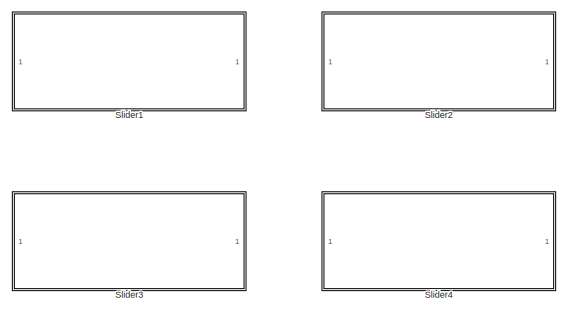
[diagram: root canvas - part 1/5, top right region]
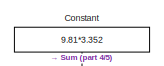
[diagram: root canvas - part 2/5, top right region]
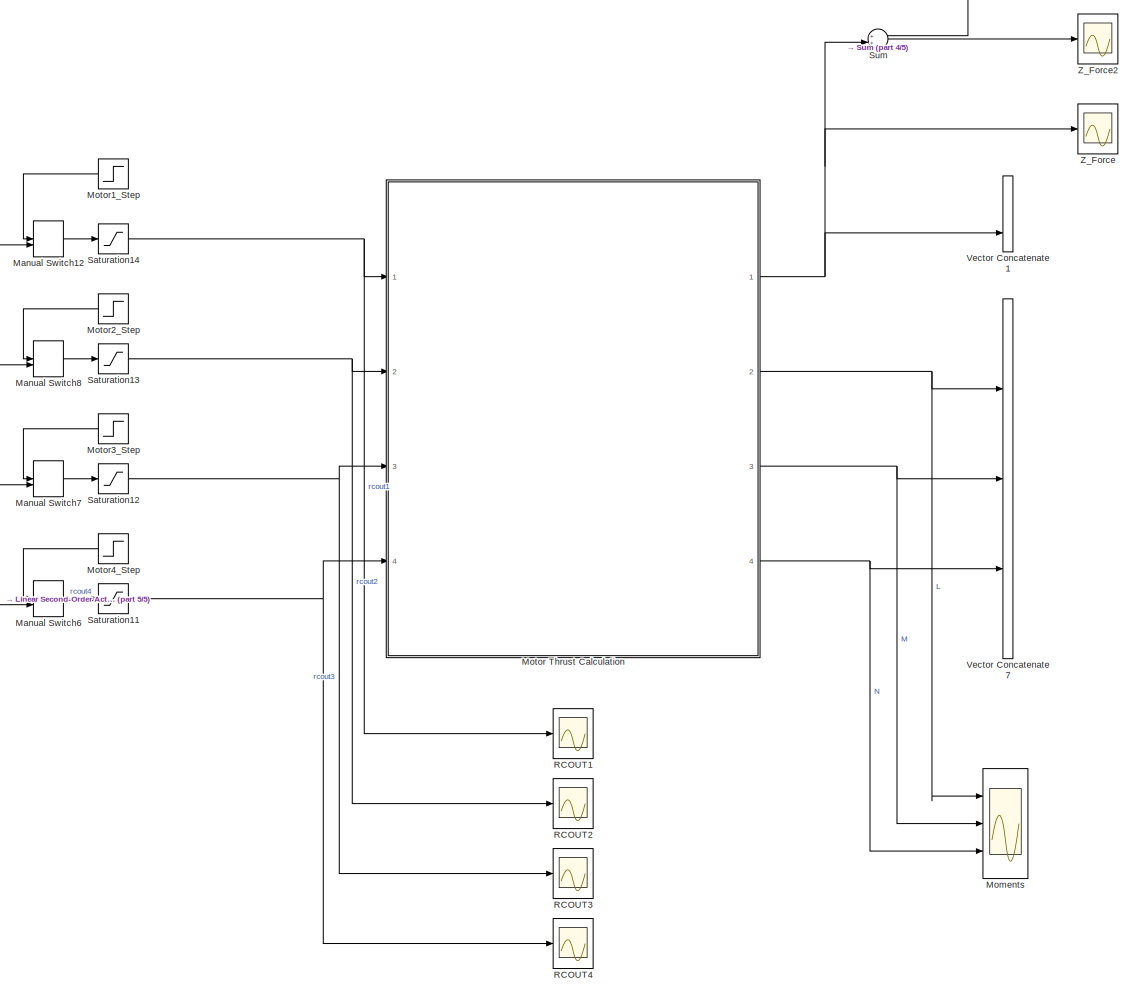
[diagram: root canvas - part 3/5, middle right region]
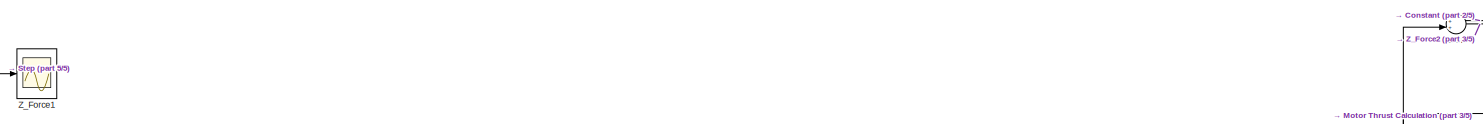
[diagram: root canvas - part 4/5, central region]
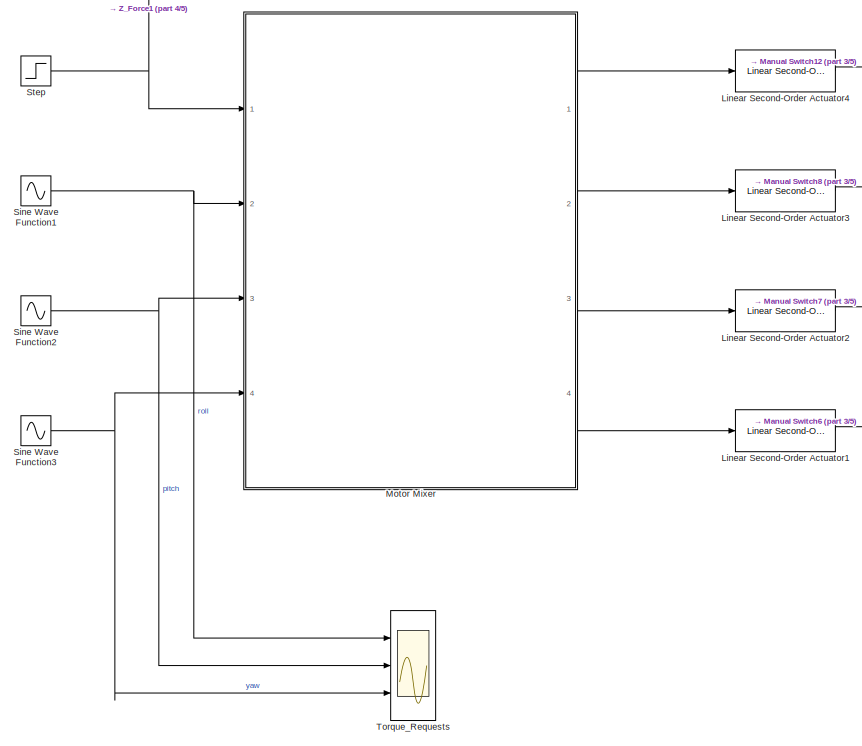
[diagram: root canvas - part 5/5, bottom left region]
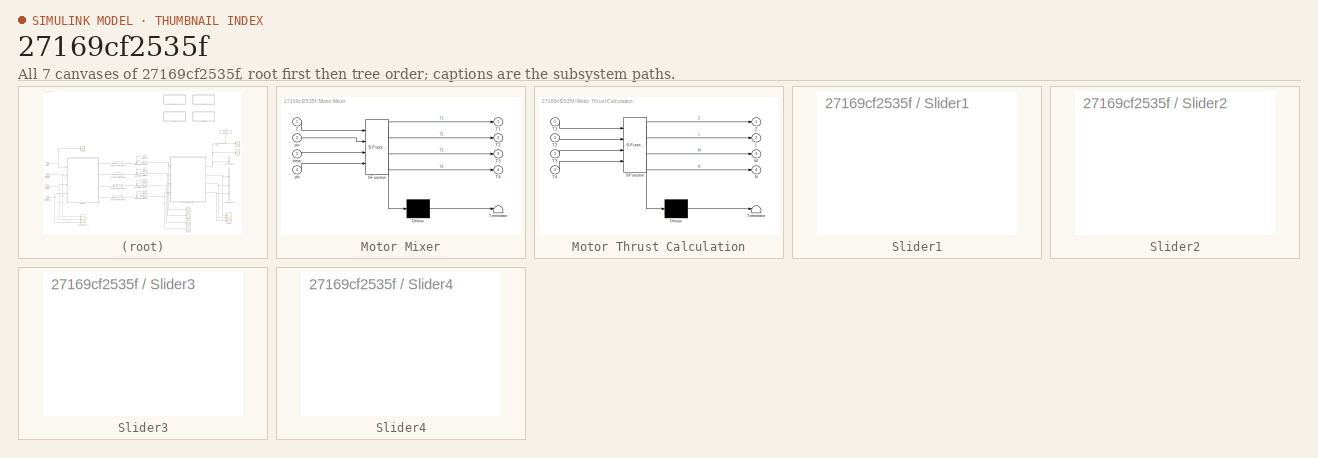
[diagram: thumbnail index - all 7 canvases of the model, root first then tree order]
MODEL slx_27169cf2535f
KIND model
CONFIG AbsTol = auto
CONFIG EnableMultiTasking = off
CONFIG FixedStep = auto
CONFIG MaxStep = auto
CONFIG MinStep = auto
CONFIG RelTol = 1e-3
CONFIG SampleTimeConstraint = Unconstrained
CONFIG Solver = VariableStepAuto
CONFIG SolverName = VariableStepAuto
CONFIG StartTime = 0.0
CONFIG StopTime = 10
BLOCK [Constant] Constant
  Value = 9.81*3.352
BLOCK [Reference] Linear Second-Order Actuator1  REF=aerolibactuator/Linear Second-Order Actuator
  Ports = [1, 1]
  SourceBlock = aerolibactuator/Linear Second-Order Actuator
  SourceProductBaseCode = AE
  SourceProductName = Aerospace Blockset
  SourceType = LinearSecondOrderActuator
BLOCK [Reference] Linear Second-Order Actuator2  REF=aerolibactuator/Linear Second-Order Actuator
  Ports = [1, 1]
  SourceBlock = aerolibactuator/Linear Second-Order Actuator
  SourceProductBaseCode = AE
  SourceProductName = Aerospace Blockset
  SourceType = LinearSecondOrderActuator
BLOCK [Reference] Linear Second-Order Actuator3  REF=aerolibactuator/Linear Second-Order Actuator
  Ports = [1, 1]
  SourceBlock = aerolibactuator/Linear Second-Order Actuator
  SourceProductBaseCode = AE
  SourceProductName = Aerospace Blockset
  SourceType = LinearSecondOrderActuator
BLOCK [Reference] Linear Second-Order Actuator4  REF=aerolibactuator/Linear Second-Order Actuator
  Ports = [1, 1]
  SourceBlock = aerolibactuator/Linear Second-Order Actuator
  SourceProductBaseCode = AE
  SourceProductName = Aerospace Blockset
  SourceType = LinearSecondOrderActuator
BLOCK [ManualSwitch] Manual Switch12
  CurrentSetting = 0
BLOCK [ManualSwitch] Manual Switch6
  CurrentSetting = 0
BLOCK [ManualSwitch] Manual Switch7
  CurrentSetting = 0
BLOCK [ManualSwitch] Manual Switch8
  CurrentSetting = 0
BLOCK [Scope] Moments
  NumInputPorts = 3
  Ports = [3]
  ScopeSpecificationString = Simulink.scopes.TimeScopeBlockCfg('CurrentConfiguration', extmgr.ConfigurationSet(extmgr.Configuration('Core','General UI',true),extmgr.Configuration('Core','Source UI',true),extmgr.Configuration('Sources','WiredSimulink',true,'DataLoggingVariableName','ScopeData6'),extmgr.Configuration('Visuals','Time Domain',true,'SerializedDisplays',{struct('MinYLimReal','-1.25012','MaxYLimReal','1.25012','YLab...<+1773ch>
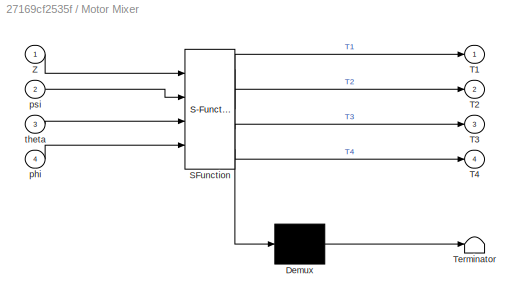
BLOCK [SubSystem] Motor Mixer
  ErrorFcn = Stateflow.Translate.translate
  PermitHierarchicalResolution = ExplicitOnly
  Ports = [4, 4]
  RequestExecContextInheritance = off
  SFBlockType = MATLAB Function
  TreatAsAtomicUnit = on
  Variant = off
BLOCK [Demux] Motor Mixer/ Demux 
  Outputs = 1
  Ports = [1, 1]
BLOCK [S-Function] Motor Mixer/ SFunction 
  EnableBusSupport = on
  FunctionName = sf_sfun
  PortCounts = [4 5]
  Ports = [4, 5]
  SFcnIsStateOwnerBlock = off
  SFunctionDeploymentMode = off
  Tag = Stateflow S-Function Motor_Mixer_Test 5
BLOCK [Terminator] Motor Mixer/ Terminator 
BLOCK [Outport] Motor Mixer/T1
  IconDisplay = Port number
BLOCK [Outport] Motor Mixer/T2
  IconDisplay = Port number
  Port = 2
BLOCK [Outport] Motor Mixer/T3
  IconDisplay = Port number
  Port = 3
BLOCK [Outport] Motor Mixer/T4
  IconDisplay = Port number
  Port = 4
BLOCK [Inport] Motor Mixer/Z
  IconDisplay = Port number
BLOCK [Inport] Motor Mixer/phi
  IconDisplay = Port number
  Port = 4
BLOCK [Inport] Motor Mixer/psi
  IconDisplay = Port number
  Port = 2
BLOCK [Inport] Motor Mixer/theta
  IconDisplay = Port number
  Port = 3
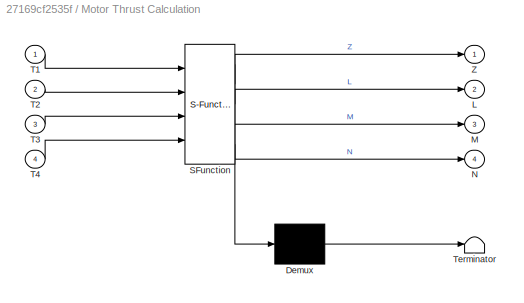
BLOCK [SubSystem] Motor Thrust Calculation
  ErrorFcn = Stateflow.Translate.translate
  PermitHierarchicalResolution = ExplicitOnly
  Ports = [4, 4]
  RequestExecContextInheritance = off
  SFBlockType = MATLAB Function
  TreatAsAtomicUnit = on
  Variant = off
BLOCK [Demux] Motor Thrust Calculation/ Demux 
  Outputs = 1
  Ports = [1, 1]
BLOCK [S-Function] Motor Thrust Calculation/ SFunction 
  EnableBusSupport = on
  FunctionName = sf_sfun
  PortCounts = [4 5]
  Ports = [4, 5]
  SFcnIsStateOwnerBlock = off
  SFunctionDeploymentMode = off
  Tag = Stateflow S-Function Motor_Mixer_Test 7
BLOCK [Terminator] Motor Thrust Calculation/ Terminator 
BLOCK [Outport] Motor Thrust Calculation/L
  IconDisplay = Port number
  Port = 2
BLOCK [Outport] Motor Thrust Calculation/M
  IconDisplay = Port number
  Port = 3
BLOCK [Outport] Motor Thrust Calculation/N
  IconDisplay = Port number
  Port = 4
BLOCK [Inport] Motor Thrust Calculation/T1
  IconDisplay = Port number
BLOCK [Inport] Motor Thrust Calculation/T2
  IconDisplay = Port number
  Port = 2
BLOCK [Inport] Motor Thrust Calculation/T3
  IconDisplay = Port number
  Port = 3
BLOCK [Inport] Motor Thrust Calculation/T4
  IconDisplay = Port number
  Port = 4
BLOCK [Outport] Motor Thrust Calculation/Z
  IconDisplay = Port number
BLOCK [Step] Motor1_Step
  After = 1365.671641791
  Before = 1000
  SampleTime = 0
  Time = 0.1
BLOCK [Step] Motor2_Step
  After = 1855.223880597
  Before = 1000
  SampleTime = 0
  Time = 0.1
BLOCK [Step] Motor3_Step
  After = 1368.6567164179
  Before = 1000
  SampleTime = 0
  Time = 0.1
BLOCK [Step] Motor4_Step
  After = 1894.0298507463
  Before = 1000
  SampleTime = 0
  Time = 0.1
BLOCK [Scope] RCOUT1
  NumInputPorts = 1
  Ports = [1]
  ScopeSpecificationString = Simulink.scopes.TimeScopeBlockCfg('CurrentConfiguration', extmgr.ConfigurationSet(extmgr.Configuration('Core','General UI',true),extmgr.Configuration('Core','Source UI',true),extmgr.Configuration('Sources','WiredSimulink',true,'DataLoggingVariableName','ScopeData1'),extmgr.Configuration('Visuals','Time Domain',true,'SerializedDisplays',{struct('MinYLimReal','-13.71645','MaxYLimReal','1.49627','YLa...<+1698ch>
BLOCK [Scope] RCOUT2
  NumInputPorts = 1
  Ports = [1]
  ScopeSpecificationString = Simulink.scopes.TimeScopeBlockCfg('CurrentConfiguration', extmgr.ConfigurationSet(extmgr.Configuration('Core','General UI',true),extmgr.Configuration('Core','Source UI',true),extmgr.Configuration('Sources','WiredSimulink',true,'DataLoggingVariableName','ScopeData3'),extmgr.Configuration('Visuals','Time Domain',true,'SerializedDisplays',{struct('MinYLimReal','-13.01013','MaxYLimReal','1.39001','YLa...<+1695ch>
BLOCK [Scope] RCOUT3
  NumInputPorts = 1
  Ports = [1]
  ScopeSpecificationString = Simulink.scopes.TimeScopeBlockCfg('CurrentConfiguration', extmgr.ConfigurationSet(extmgr.Configuration('Core','General UI',true),extmgr.Configuration('Core','Source UI',true),extmgr.Configuration('Sources','WiredSimulink',true,'DataLoggingVariableName','ScopeData4'),extmgr.Configuration('Visuals','Time Domain',true,'SerializedDisplays',{struct('MinYLimReal','-14.77868','MaxYLimReal','1.58652','YLa...<+1696ch>
BLOCK [Scope] RCOUT4
  NumInputPorts = 1
  Ports = [1]
  ScopeSpecificationString = Simulink.scopes.TimeScopeBlockCfg('CurrentConfiguration', extmgr.ConfigurationSet(extmgr.Configuration('Core','General UI',true),extmgr.Configuration('Core','Source UI',true),extmgr.Configuration('Sources','WiredSimulink',true,'DataLoggingVariableName','ScopeData5'),extmgr.Configuration('Visuals','Time Domain',true,'SerializedDisplays',{struct('MinYLimReal','-14.07549','MaxYLimReal','1.50839','YLa...<+1703ch>
BLOCK [Saturate] Saturation11
  InputPortMap = u0
  LowerLimit = -25
  Ports = [1, 1]
  UpperLimit = -0.05
BLOCK [Saturate] Saturation12
  InputPortMap = u0
  LowerLimit = -25
  Ports = [1, 1]
  UpperLimit = -0.05
BLOCK [Saturate] Saturation13
  InputPortMap = u0
  LowerLimit = -25
  Ports = [1, 1]
  UpperLimit = -0.05
BLOCK [Saturate] Saturation14
  InputPortMap = u0
  LowerLimit = -25
  Ports = [1, 1]
  UpperLimit = -0.025
BLOCK [Sin] Sine Wave Function1
  Ports = [0, 1]
  SampleTime = Ts
BLOCK [Sin] Sine Wave Function2
  Amplitude = 0.75
  Ports = [0, 1]
  SampleTime = Ts
BLOCK [Sin] Sine Wave Function3
  Amplitude = 0.5
  Ports = [0, 1]
  SampleTime = Ts
BLOCK [SubSystem] Slider1
  DialogController = hmiCreateDDGDialog
  IsWebBlock = on
  MaskHideContents = on
  Ports = []
  RequestExecContextInheritance = off
  Variant = off
BLOCK [SubSystem] Slider2
  DialogController = hmiCreateDDGDialog
  IsWebBlock = on
  MaskHideContents = on
  Ports = []
  RequestExecContextInheritance = off
  Variant = off
BLOCK [SubSystem] Slider3
  DialogController = hmiCreateDDGDialog
  IsWebBlock = on
  MaskHideContents = on
  Ports = []
  RequestExecContextInheritance = off
  Variant = off
BLOCK [SubSystem] Slider4
  DialogController = hmiCreateDDGDialog
  IsWebBlock = on
  MaskHideContents = on
  Ports = []
  RequestExecContextInheritance = off
  Variant = off
BLOCK [Step] Step
  After = -40
  SampleTime = 0
  Time = 0.1
BLOCK [Sum] Sum
  IconShape = round
  InputSameDT = off
  Inputs = ++|
  OutDataTypeStr = Inherit: Inherit via internal rule
  Ports = [2, 1]
  SaturateOnIntegerOverflow = off
BLOCK [Scope] Torque_Requests
  NumInputPorts = 3
  Ports = [3]
  ScopeSpecificationString = Simulink.scopes.TimeScopeBlockCfg('CurrentConfiguration', extmgr.ConfigurationSet(extmgr.Configuration('Core','General UI',true),extmgr.Configuration('Core','Source UI',true),extmgr.Configuration('Sources','WiredSimulink',true,'DataLoggingVariableName','ScopeData2'),extmgr.Configuration('Visuals','Time Domain',true,'SerializedDisplays',{struct('MinYLimReal','-1.25','MaxYLimReal','1.25','YLabelReal...<+1762ch>
BLOCK [Concatenate] Vector Concatenate1
  NumInputs = 3
  Ports = [3, 1]
BLOCK [Concatenate] Vector Concatenate7
  NumInputs = 3
  Ports = [3, 1]
BLOCK [Scope] Z_Force
  NumInputPorts = 1
  Ports = [1]
  ScopeSpecificationString = Simulink.scopes.TimeScopeBlockCfg('CurrentConfiguration', extmgr.ConfigurationSet(extmgr.Configuration('Core','General UI',true),extmgr.Configuration('Core','Source UI',true),extmgr.Configuration('Sources','WiredSimulink',true,'DataLoggingVariableName','ScopeData7'),extmgr.Configuration('Visuals','Time Domain',true,'SerializedDisplays',{struct('MinYLimReal','-44.97813','MaxYLimReal','4.80313','YLa...<+1770ch>
BLOCK [Scope] Z_Force1
  NumInputPorts = 1
  Ports = [1]
  ScopeSpecificationString = Simulink.scopes.TimeScopeBlockCfg('CurrentConfiguration', extmgr.ConfigurationSet(extmgr.Configuration('Core','General UI',true),extmgr.Configuration('Core','Source UI',true),extmgr.Configuration('Sources','WiredSimulink',true),extmgr.Configuration('Visuals','Time Domain',true,'SerializedDisplays',{struct('MinYLimReal','-45.00000','MaxYLimReal','5.00000','YLabelReal','','MinYLimMag','0.00000','Max...<+1695ch>
BLOCK [Scope] Z_Force2
  NumInputPorts = 1
  Ports = [1]
  ScopeSpecificationString = Simulink.scopes.TimeScopeBlockCfg('CurrentConfiguration', extmgr.ConfigurationSet(extmgr.Configuration('Core','General UI',true),extmgr.Configuration('Core','Source UI',true),extmgr.Configuration('Sources','WiredSimulink',true,'DataLoggingVariableName','ScopeData1'),extmgr.Configuration('Visuals','Time Domain',true,'SerializedDisplays',{struct('MinYLimReal','-12.09501','MaxYLimReal','37.68625','YL...<+1750ch>
LINE Constant:1 -> Sum:1
LINE Linear Second-Order Actuator1:1 -> Manual Switch6:2
LINE Linear Second-Order Actuator2:1 -> Manual Switch7:2
LINE Linear Second-Order Actuator3:1 -> Manual Switch8:2
LINE Linear Second-Order Actuator4:1 -> Manual Switch12:2
LINE Manual Switch12:1 -> Saturation14:1
LINE Manual Switch6:1 -> Saturation11:1
LINE Manual Switch7:1 -> Saturation12:1
LINE Manual Switch8:1 -> Saturation13:1
LINE Motor Mixer:1 -> Linear Second-Order Actuator4:1
LINE Motor Mixer:2 -> Linear Second-Order Actuator3:1
LINE Motor Mixer:3 -> Linear Second-Order Actuator2:1
LINE Motor Mixer:4 -> Linear Second-Order Actuator1:1
NET Motor Thrust Calculation:1 -> Sum:2, Vector Concatenate1:3, Z_Force:1
NET Motor Thrust Calculation:2 -> Moments:1, Vector Concatenate7:1
NET Motor Thrust Calculation:3 -> Moments:2, Vector Concatenate7:2
NET Motor Thrust Calculation:4 -> Moments:3, Vector Concatenate7:3
LINE Motor1_Step:1 -> Manual Switch12:1
LINE Motor2_Step:1 -> Manual Switch8:1
LINE Motor3_Step:1 -> Manual Switch7:1
LINE Motor4_Step:1 -> Manual Switch6:1
NET Saturation11:1 -> Motor Thrust Calculation:4, RCOUT4:1
NET Saturation12:1 -> Motor Thrust Calculation:3, RCOUT3:1
NET Saturation13:1 -> Motor Thrust Calculation:2, RCOUT2:1
NET Saturation14:1 -> Motor Thrust Calculation:1, RCOUT1:1
NET Sine Wave Function1:1 -> Motor Mixer:2, Torque_Requests:1
NET Sine Wave Function2:1 -> Motor Mixer:3, Torque_Requests:2
NET Sine Wave Function3:1 -> Motor Mixer:4, Torque_Requests:3
NET Step:1 -> Motor Mixer:1, Z_Force1:1
LINE Sum:1 -> Z_Force2:1
note: NET lines group one-source signal fan-out (src -> all destinations, sorted); 1:1 wires keep LINE
CHART Motor Mixer states=1 transitions=1
  STATE_LABEL 'eML_blk_kernel()'
  STATE_LABEL 'SCRIPT:\nfunction [T1,T2,T3,T4]  = fcn(Z, psi, theta, phi)\n%       ccw       cw            \n%N         3    1\n%           \\  /\n%            \\/\n%            /\\\n%           /  \\\n%          2    4       \n%       cw        ccw   E\n%%%%%%%%%%%%%%%%%%%%%%%%%\n\n%% Inputs\narmLength           = 0.41;            %Meters\nalpha               = deg2rad(15);     %Rad\nchordLength         = 0.040;           %Meters...<+592ch>'
CHART Motor Thrust Calculation states=1 transitions=1
  STATE_LABEL 'eML_blk_kernel()'
  STATE_LABEL 'SCRIPT:\nfunction [Z, L, M, N]  = fcn(T1,T2,T3,T4)\n%       ccw       cw            \n%N         3    1\n%           \\  /\n%            \\/\n%            /\\\n%           /  \\\n%          2    4       \n%       cw        ccw   E\n%%%%%%%%%%%%%%%%%%%%%%%%%\n\n%% Inputs\narmLength           = 0.41;            %Meters\nalpha               = deg2rad(15);     %Rad\nchordLength         = 0.040;           %Meters\nliftDra...<+573ch>'
